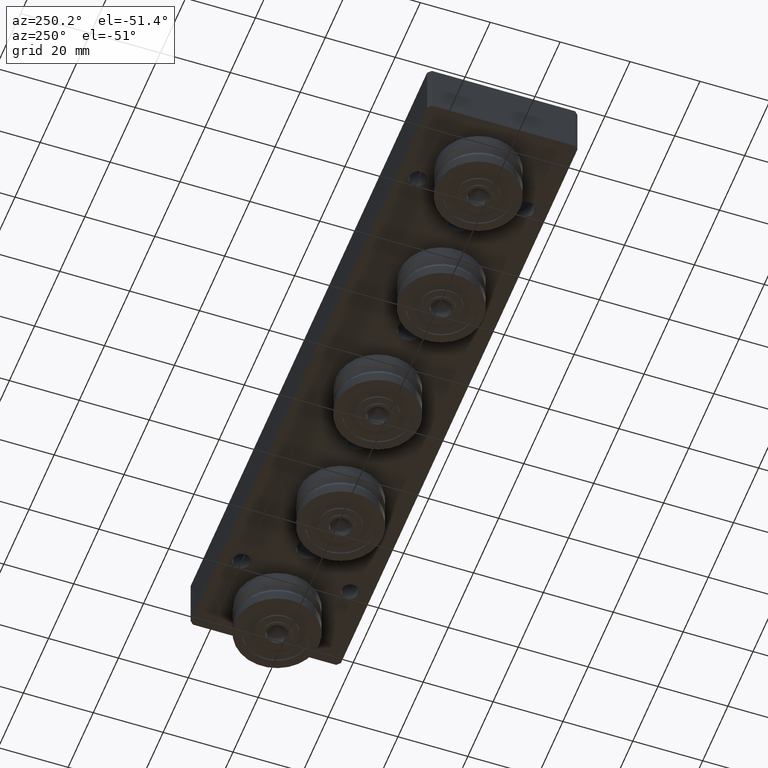
[diagram: clean part render]
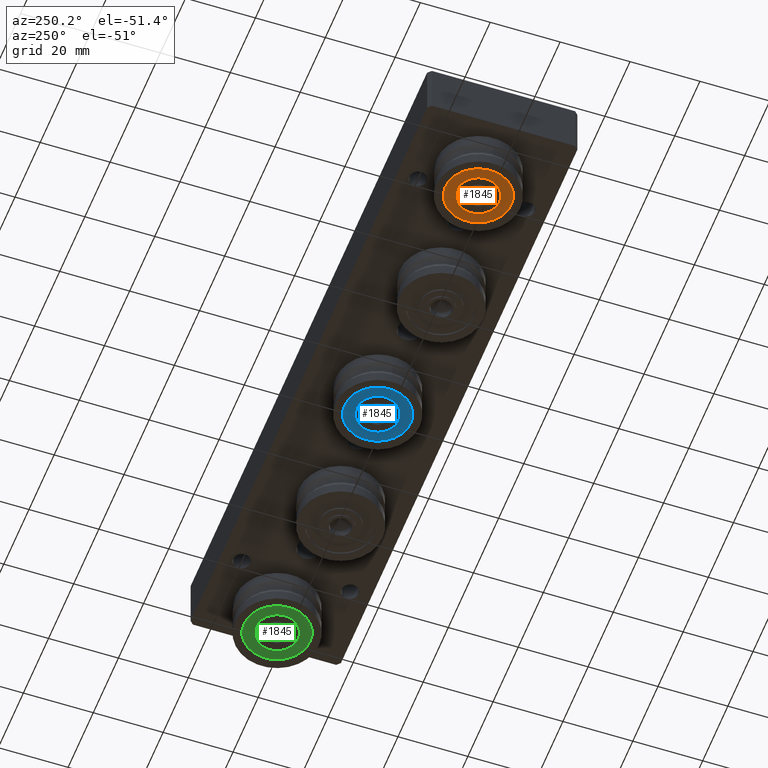
[diagram: same view with three faces highlighted in distinct colors, each labeled with its STEP entity id]
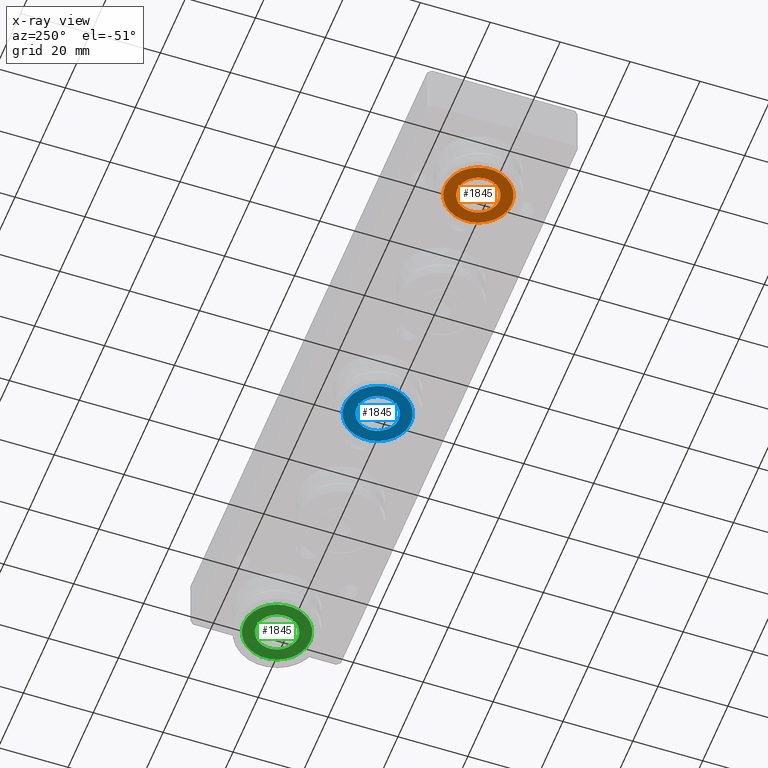
[diagram: x-ray of the same camera — body ghosted, the three highlighted faces saturated]
A machine part, auxiliary view with three faces highlighted in distinct colors.
The next image is the same camera in x-ray (body ghosted, the three faces saturated) — at least one of them is partly hidden behind the body in this view.
Their STEP definitions:

[orange] entity #1845 — the highlighted planar face has unit normal (0, 0, -1).
#228=FACE_BOUND('',#568,.T.);
#305=CIRCLE('',#2174,6.);
#306=CIRCLE('',#2176,9.5);
#415=FACE_OUTER_BOUND('',#567,.T.);
#567=EDGE_LOOP('',(#1563));
#568=EDGE_LOOP('',(#1564));
#972=VERTEX_POINT('',#3240);
#973=VERTEX_POINT('',#3244);
#1177=EDGE_CURVE('',#972,#972,#305,.T.);
#1179=EDGE_CURVE('',#973,#973,#306,.T.);
#1563=ORIENTED_EDGE('',*,*,#1179,.F.);
#1564=ORIENTED_EDGE('',*,*,#1177,.T.);
#1754=PLANE('',#2175);
#1845=ADVANCED_FACE('',(#415,#228),#1754,.T.);
#2174=AXIS2_PLACEMENT_3D('',#3241,#2642,#2643);
#2175=AXIS2_PLACEMENT_3D('',#3243,#2645,#2646);
#2176=AXIS2_PLACEMENT_3D('',#3245,#2647,#2648);
#2642=DIRECTION('center_axis',(1.,0.,0.));
#2643=DIRECTION('ref_axis',(0.,1.,0.));
#2645=DIRECTION('center_axis',(-1.,0.,0.));
#2646=DIRECTION('ref_axis',(0.,0.,1.));
#2647=DIRECTION('center_axis',(1.,0.,0.));
#2648=DIRECTION('ref_axis',(0.,1.,0.));
#3240=CARTESIAN_POINT('',(-5.,-6.,-7.34788079488412E-16));
#3241=CARTESIAN_POINT('Origin',(-5.,0.,0.));
#3243=CARTESIAN_POINT('Origin',(-5.,7.75,0.));
#3244=CARTESIAN_POINT('',(-5.,-9.5,-1.16341445918999E-15));
#3245=CARTESIAN_POINT('Origin',(-5.,0.,0.));

[blue] entity #1845 — the highlighted planar face has unit normal (0, 0, -1).
#228=FACE_BOUND('',#568,.T.);
#305=CIRCLE('',#2174,6.);
#306=CIRCLE('',#2176,9.5);
#415=FACE_OUTER_BOUND('',#567,.T.);
#567=EDGE_LOOP('',(#1563));
#568=EDGE_LOOP('',(#1564));
#972=VERTEX_POINT('',#3240);
#973=VERTEX_POINT('',#3244);
#1177=EDGE_CURVE('',#972,#972,#305,.T.);
#1179=EDGE_CURVE('',#973,#973,#306,.T.);
#1563=ORIENTED_EDGE('',*,*,#1179,.F.);
#1564=ORIENTED_EDGE('',*,*,#1177,.T.);
#1754=PLANE('',#2175);
#1845=ADVANCED_FACE('',(#415,#228),#1754,.T.);
#2174=AXIS2_PLACEMENT_3D('',#3241,#2642,#2643);
#2175=AXIS2_PLACEMENT_3D('',#3243,#2645,#2646);
#2176=AXIS2_PLACEMENT_3D('',#3245,#2647,#2648);
#2642=DIRECTION('center_axis',(1.,0.,0.));
#2643=DIRECTION('ref_axis',(0.,1.,0.));
#2645=DIRECTION('center_axis',(-1.,0.,0.));
#2646=DIRECTION('ref_axis',(0.,0.,1.));
#2647=DIRECTION('center_axis',(1.,0.,0.));
#2648=DIRECTION('ref_axis',(0.,1.,0.));
#3240=CARTESIAN_POINT('',(-5.,-6.,-7.34788079488412E-16));
#3241=CARTESIAN_POINT('Origin',(-5.,0.,0.));
#3243=CARTESIAN_POINT('Origin',(-5.,7.75,0.));
#3244=CARTESIAN_POINT('',(-5.,-9.5,-1.16341445918999E-15));
#3245=CARTESIAN_POINT('Origin',(-5.,0.,0.));

[green] entity #1845 — the highlighted planar face has unit normal (0, 0, -1).
#228=FACE_BOUND('',#568,.T.);
#305=CIRCLE('',#2174,6.);
#306=CIRCLE('',#2176,9.5);
#415=FACE_OUTER_BOUND('',#567,.T.);
#567=EDGE_LOOP('',(#1563));
#568=EDGE_LOOP('',(#1564));
#972=VERTEX_POINT('',#3240);
#973=VERTEX_POINT('',#3244);
#1177=EDGE_CURVE('',#972,#972,#305,.T.);
#1179=EDGE_CURVE('',#973,#973,#306,.T.);
#1563=ORIENTED_EDGE('',*,*,#1179,.F.);
#1564=ORIENTED_EDGE('',*,*,#1177,.T.);
#1754=PLANE('',#2175);
#1845=ADVANCED_FACE('',(#415,#228),#1754,.T.);
#2174=AXIS2_PLACEMENT_3D('',#3241,#2642,#2643);
#2175=AXIS2_PLACEMENT_3D('',#3243,#2645,#2646);
#2176=AXIS2_PLACEMENT_3D('',#3245,#2647,#2648);
#2642=DIRECTION('center_axis',(1.,0.,0.));
#2643=DIRECTION('ref_axis',(0.,1.,0.));
#2645=DIRECTION('center_axis',(-1.,0.,0.));
#2646=DIRECTION('ref_axis',(0.,0.,1.));
#2647=DIRECTION('center_axis',(1.,0.,0.));
#2648=DIRECTION('ref_axis',(0.,1.,0.));
#3240=CARTESIAN_POINT('',(-5.,-6.,-7.34788079488412E-16));
#3241=CARTESIAN_POINT('Origin',(-5.,0.,0.));
#3243=CARTESIAN_POINT('Origin',(-5.,7.75,0.));
#3244=CARTESIAN_POINT('',(-5.,-9.5,-1.16341445918999E-15));
#3245=CARTESIAN_POINT('Origin',(-5.,0.,0.));